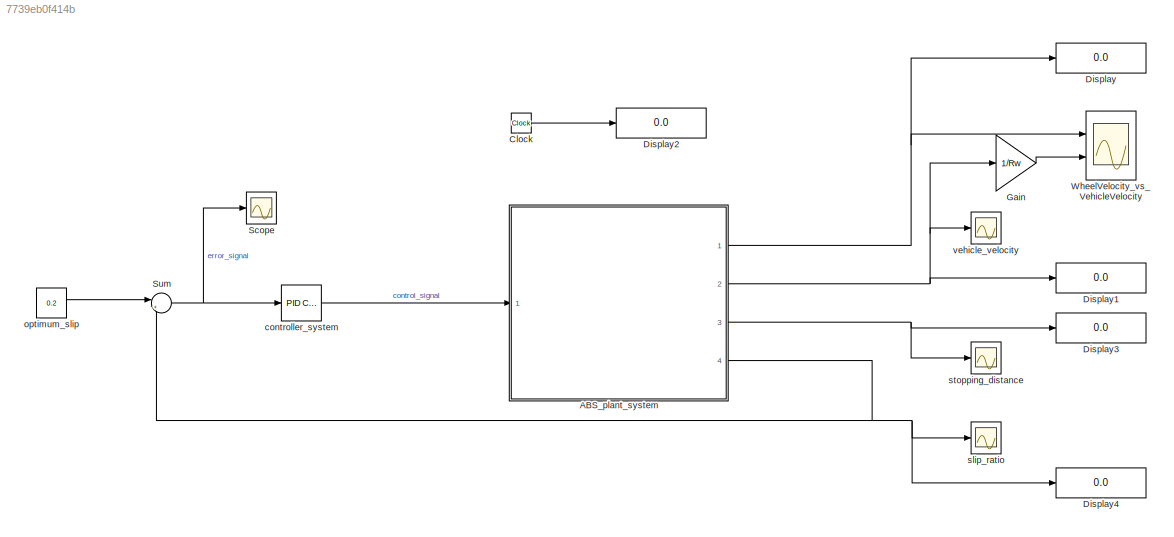
MODEL slx_7739eb0f414b
KIND model
CONFIG AbsTol = auto
CONFIG EnableMultiTasking = off
CONFIG FixedStep = 0.01
CONFIG MaxStep = auto
CONFIG MinStep = auto
CONFIG RelTol = 1
CONFIG SampleTimeConstraint = Unconstrained
CONFIG SolverName = VariableStepAuto
CONFIG StartTime = 0.0
CONFIG StopTime = 50000
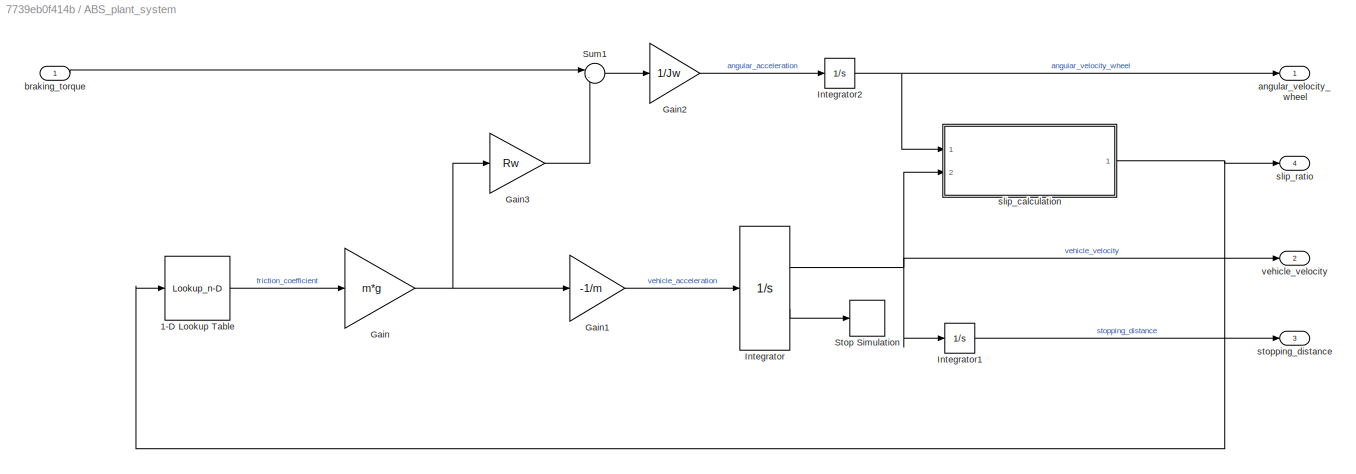
BLOCK [SubSystem] ABS_plant_system
  Ports = [1, 4]
  RequestExecContextInheritance = off
BLOCK [Lookup_n-D] ABS_plant_system/1-D Lookup Table
  BreakpointsForDimension1 = slip
  InputPortMap = u0
  InputSameDT = off
  InternalRulePriority = Speed
  NumberOfTableDimensions = 1
  Ports = [1, 1]
  RndMeth = Simplest
  SaturateOnIntegerOverflow = on
  Table = mu
BLOCK [Gain] ABS_plant_system/Gain
  Gain = m*g
BLOCK [Gain] ABS_plant_system/Gain1
  Gain = -1/m
BLOCK [Gain] ABS_plant_system/Gain2
  Gain = 1/Jw
BLOCK [Gain] ABS_plant_system/Gain3
  Gain = Rw
BLOCK [Integrator] ABS_plant_system/Integrator
  InitialCondition = Vi
  LimitOutput = on
  LowerSaturationLimit = 0
  Ports = [1, 2]
  ShowSaturationPort = on
  UpperSaturationLimit = 1000
BLOCK [Integrator] ABS_plant_system/Integrator1
  Ports = [1, 1]
BLOCK [Integrator] ABS_plant_system/Integrator2
  InitialCondition = Vi/Rw
  LimitOutput = on
  LowerSaturationLimit = 0
  Ports = [1, 1]
  UpperSaturationLimit = 1000
BLOCK [Stop] ABS_plant_system/Stop Simulation
BLOCK [Sum] ABS_plant_system/Sum1
  Inputs = |-+
  Ports = [2, 1]
BLOCK [Outport] ABS_plant_system/angular_velocity_wheel
BLOCK [Inport] ABS_plant_system/braking_torque
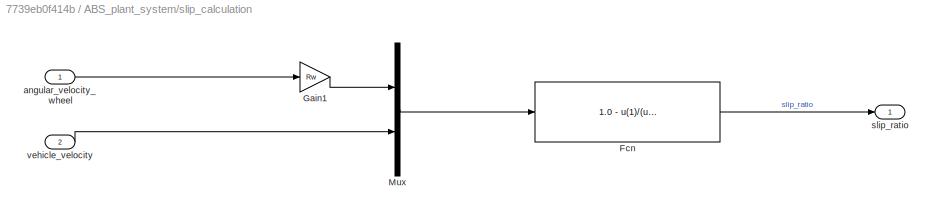
BLOCK [SubSystem] ABS_plant_system/slip_calculation
  Ports = [2, 1]
  RequestExecContextInheritance = off
BLOCK [Fcn] ABS_plant_system/slip_calculation/Fcn
  Expr = 1.0 - u(1)/(u(2) + (u(2)==0)*eps)
BLOCK [Gain] ABS_plant_system/slip_calculation/Gain1
  Gain = Rw
BLOCK [Mux] ABS_plant_system/slip_calculation/Mux
  DisplayOption = bar
  Inputs = 2
  Ports = [2, 1]
BLOCK [Inport] ABS_plant_system/slip_calculation/angular_velocity_wheel
BLOCK [Outport] ABS_plant_system/slip_calculation/slip_ratio
BLOCK [Inport] ABS_plant_system/slip_calculation/vehicle_velocity
  Port = 2
BLOCK [Outport] ABS_plant_system/slip_ratio
  Port = 4
BLOCK [Outport] ABS_plant_system/stopping_distance
  Port = 3
BLOCK [Outport] ABS_plant_system/vehicle_velocity
  Port = 2
BLOCK [Clock] Clock
BLOCK [Display] Display
  Decimation = 1
  Ports = [1]
BLOCK [Display] Display1
  Decimation = 1
  Ports = [1]
BLOCK [Display] Display2
  Decimation = 1
  Ports = [1]
BLOCK [Display] Display3
  Decimation = 1
  Ports = [1]
BLOCK [Display] Display4
  Decimation = 1
  Ports = [1]
BLOCK [Gain] Gain
  Gain = 1/Rw
BLOCK [Scope] Scope
  Floating = off
  NumInputPorts = 1
  Ports = [1]
  ScopeSpecificationString = Simulink.scopes.TimeScopeBlockCfg('CurrentConfiguration', extmgr.ConfigurationSet(extmgr.Configuration('Core','General UI',true),extmgr.Configuration('Core','Source UI',true),extmgr.Configuration('Sources','WiredSimulink',true,'DataLoggingVariableName','ScopeData1'),extmgr.Configuration('Visuals','Time Domain',true,'SerializedDisplays',{struct('MinYLimReal','0.29606','MaxYLimReal','0.33117','YLabe...<+1413ch>
BLOCK [Sum] Sum
  Inputs = |+-
  Ports = [2, 1]
BLOCK [Scope] WheelVelocity_vs_VehicleVelocity
  Floating = off
  NumInputPorts = 2
  Ports = [2]
  ScopeSpecificationString = Simulink.scopes.TimeScopeBlockCfg('CurrentConfiguration', extmgr.ConfigurationSet(extmgr.Configuration('Core','General UI',true),extmgr.Configuration('Core','Source UI',true),extmgr.Configuration('Sources','WiredSimulink',true,'DataLoggingVariableName','ScopeData3'),extmgr.Configuration('Visuals','Time Domain',true,'SerializedDisplays',{struct('MinYLimReal','-10.5303','MaxYLimReal','94.77273','YLa...<+1450ch>
BLOCK [Reference] controller_system  REF=pid_lib/PID Controller
  Ports = [1, 1]
  SourceBlock = pid_lib/PID Controller
  SourceProductBaseCode = SL
  SourceType = PID 1dof
BLOCK [Constant] optimum_slip
  OutDataTypeStr = double
  Value = 0.2
BLOCK [Scope] slip_ratio
  Floating = off
  NumInputPorts = 1
  Ports = [1]
  ScopeSpecificationString = Simulink.scopes.TimeScopeBlockCfg('CurrentConfiguration', extmgr.ConfigurationSet(extmgr.Configuration('Core','General UI',true),extmgr.Configuration('Core','Source UI',true),extmgr.Configuration('Sources','WiredSimulink',true),extmgr.Configuration('Visuals','Time Domain',true,'SerializedDisplays',{struct('MinYLimReal','-5685846189253571.00000','MaxYLimReal','631760687694842.25','YLabelReal','','M...<+1496ch>
BLOCK [Scope] stopping_distance
  Floating = off
  NumInputPorts = 1
  Ports = [1]
  ScopeSpecificationString = Simulink.scopes.TimeScopeBlockCfg('CurrentConfiguration', extmgr.ConfigurationSet(extmgr.Configuration('Core','General UI',true),extmgr.Configuration('Core','Source UI',true),extmgr.Configuration('Sources','WiredSimulink',true,'DataLoggingVariableName','ScopeData1'),extmgr.Configuration('Visuals','Time Domain',true,'SerializedDisplays',{struct('MinYLimReal','-7.44741','MaxYLimReal','67.02671','YLa...<+1407ch>
BLOCK [Scope] vehicle_velocity
  Floating = off
  NumInputPorts = 1
  Ports = [1]
  ScopeSpecificationString = Simulink.scopes.TimeScopeBlockCfg('CurrentConfiguration', extmgr.ConfigurationSet(extmgr.Configuration('Core','General UI',true),extmgr.Configuration('Core','Source UI',true),extmgr.Configuration('Sources','WiredSimulink',true,'DataLoggingVariableName','ScopeData2'),extmgr.Configuration('Visuals','Time Domain',true,'SerializedDisplays',{struct('MinYLimReal','-3.475','MaxYLimReal','31.275','YLabelR...<+1394ch>
LINE ABS_plant_system/1-D Lookup Table:1 -> ABS_plant_system/Gain:1
LINE ABS_plant_system/Gain1:1 -> ABS_plant_system/Integrator:1
LINE ABS_plant_system/Gain2:1 -> ABS_plant_system/Integrator2:1
LINE ABS_plant_system/Gain3:1 -> ABS_plant_system/Sum1:2
NET ABS_plant_system/Gain:1 -> ABS_plant_system/Gain1:1, ABS_plant_system/Gain3:1
LINE ABS_plant_system/Integrator1:1 -> ABS_plant_system/stopping_distance:1
NET ABS_plant_system/Integrator2:1 -> ABS_plant_system/angular_velocity_wheel:1, ABS_plant_system/slip_calculation:1
NET ABS_plant_system/Integrator:1 -> ABS_plant_system/Integrator1:1, ABS_plant_system/slip_calculation:2, ABS_plant_system/vehicle_velocity:1
LINE ABS_plant_system/Integrator:2 -> ABS_plant_system/Stop Simulation:1
LINE ABS_plant_system/Sum1:1 -> ABS_plant_system/Gain2:1
LINE ABS_plant_system/braking_torque:1 -> ABS_plant_system/Sum1:1
LINE ABS_plant_system/slip_calculation/Fcn:1 -> ABS_plant_system/slip_calculation/slip_ratio:1
LINE ABS_plant_system/slip_calculation/Gain1:1 -> ABS_plant_system/slip_calculation/Mux:1
LINE ABS_plant_system/slip_calculation/Mux:1 -> ABS_plant_system/slip_calculation/Fcn:1
LINE ABS_plant_system/slip_calculation/angular_velocity_wheel:1 -> ABS_plant_system/slip_calculation/Gain1:1
LINE ABS_plant_system/slip_calculation/vehicle_velocity:1 -> ABS_plant_system/slip_calculation/Mux:2
NET ABS_plant_system/slip_calculation:1 -> ABS_plant_system/1-D Lookup Table:1, ABS_plant_system/slip_ratio:1
NET ABS_plant_system:1 -> Display:1, WheelVelocity_vs_VehicleVelocity:1
NET ABS_plant_system:2 -> Display1:1, Gain:1, vehicle_velocity:1
NET ABS_plant_system:3 -> Display3:1, stopping_distance:1
NET ABS_plant_system:4 -> Display4:1, Sum:2, slip_ratio:1
LINE Clock:1 -> Display2:1
LINE Gain:1 -> WheelVelocity_vs_VehicleVelocity:2
NET Sum:1 -> Scope:1, controller_system:1
LINE controller_system:1 -> ABS_plant_system:1
LINE optimum_slip:1 -> Sum:1
note: NET lines group one-source signal fan-out (src -> all destinations, sorted); 1:1 wires keep LINE
